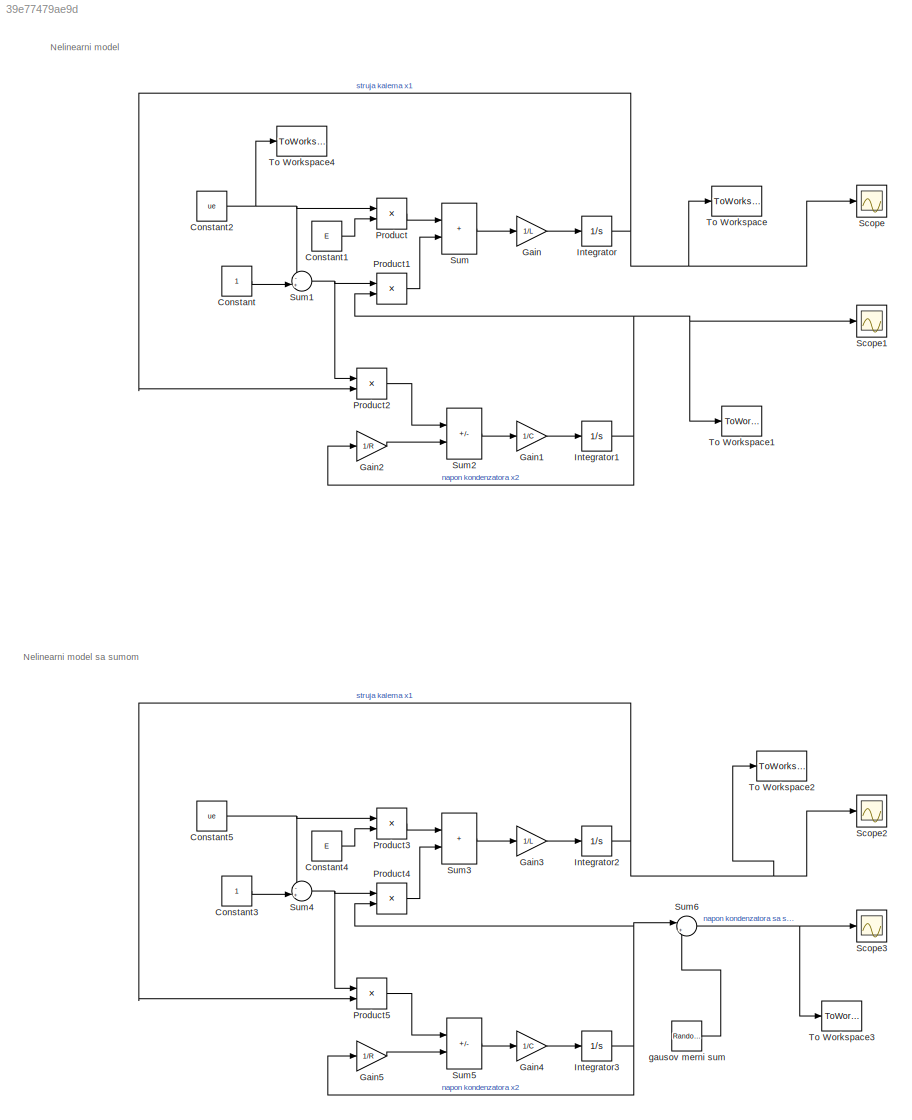
MODEL slx_39e77479ae9d
KIND model
CONFIG AbsTol = auto
CONFIG EnableMultiTasking = off
CONFIG FixedStep = 1e-3
CONFIG MaxStep = auto
CONFIG MinStep = auto
CONFIG RelTol = 1e-3
CONFIG SampleTimeConstraint = Unconstrained
CONFIG Solver = FixedStepAuto
CONFIG SolverName = FixedStepAuto
CONFIG StartTime = 0.0
CONFIG StopTime = sim_duration
BLOCK [Constant] Constant
BLOCK [Constant] Constant1
  Value = E
BLOCK [Constant] Constant2
  Value = ue
BLOCK [Constant] Constant3
BLOCK [Constant] Constant4
  Value = E
BLOCK [Constant] Constant5
  Value = ue
BLOCK [Gain] Gain
  Gain = 1/L
BLOCK [Gain] Gain1
  Gain = 1/C
BLOCK [Gain] Gain2
  Gain = 1/R
BLOCK [Gain] Gain3
  Gain = 1/L
BLOCK [Gain] Gain4
  Gain = 1/C
BLOCK [Gain] Gain5
  Gain = 1/R
BLOCK [Integrator] Integrator
  Ports = [1, 1]
BLOCK [Integrator] Integrator1
  Ports = [1, 1]
BLOCK [Integrator] Integrator2
  Ports = [1, 1]
BLOCK [Integrator] Integrator3
  Ports = [1, 1]
BLOCK [Product] Product
  Ports = [2, 1]
BLOCK [Product] Product1
  Ports = [2, 1]
BLOCK [Product] Product2
  Ports = [2, 1]
BLOCK [Product] Product3
  Ports = [2, 1]
BLOCK [Product] Product4
  Ports = [2, 1]
BLOCK [Product] Product5
  Ports = [2, 1]
BLOCK [Scope] Scope
  Floating = off
  NumInputPorts = 1
  Ports = [1]
  ScopeSpecificationString = Simulink.scopes.TimeScopeBlockCfg('CurrentConfiguration', extmgr.ConfigurationSet(extmgr.Configuration('Core','General UI',true),extmgr.Configuration('Core','Source UI',true),extmgr.Configuration('Sources','WiredSimulink',true),extmgr.Configuration('Visuals','Time Domain',true,'SerializedDisplays',{struct('MinYLimReal','-11.47133','MaxYLimReal','15.63356','YLabelReal','','MinYLimMag','0.00000','Ma...<+1342ch>
BLOCK [Scope] Scope1
  Floating = off
  NumInputPorts = 1
  Ports = [1]
  ScopeSpecificationString = Simulink.scopes.TimeScopeBlockCfg('CurrentConfiguration', extmgr.ConfigurationSet(extmgr.Configuration('Core','General UI',true),extmgr.Configuration('Core','Source UI',true),extmgr.Configuration('Sources','WiredSimulink',true,'DataLoggingVariableName','ScopeData1'),extmgr.Configuration('Visuals','Time Domain',true,'SerializedDisplays',{struct('MinYLimReal','-40.07464','MaxYLimReal','4.45274','YLa...<+1384ch>
BLOCK [Scope] Scope2
  Floating = off
  NumInputPorts = 1
  Ports = [1]
  ScopeSpecificationString = Simulink.scopes.TimeScopeBlockCfg('CurrentConfiguration', extmgr.ConfigurationSet(extmgr.Configuration('Core','General UI',true),extmgr.Configuration('Core','Source UI',true),extmgr.Configuration('Sources','WiredSimulink',true,'DataLoggingVariableName','ScopeData1'),extmgr.Configuration('Visuals','Time Domain',true,'SerializedDisplays',{struct('MinYLimReal','-1.06064','MaxYLimReal','4.59108','YLab...<+1359ch>
BLOCK [Scope] Scope3
  Floating = off
  NumInputPorts = 1
  Ports = [1]
  ScopeSpecificationString = Simulink.scopes.TimeScopeBlockCfg('CurrentConfiguration', extmgr.ConfigurationSet(extmgr.Configuration('Core','General UI',true),extmgr.Configuration('Core','Source UI',true),extmgr.Configuration('Sources','WiredSimulink',true,'DataLoggingVariableName','ScopeData2'),extmgr.Configuration('Visuals','Time Domain',true,'SerializedDisplays',{struct('MinYLimReal','-40.07464','MaxYLimReal','4.45274','YLa...<+1384ch>
BLOCK [Sum] Sum
  IconShape = rectangular
  Ports = [2, 1]
BLOCK [Sum] Sum1
  Inputs = -+|
  Ports = [2, 1]
BLOCK [Sum] Sum2
  IconShape = rectangular
  Inputs = --
  Ports = [2, 1]
BLOCK [Sum] Sum3
  IconShape = rectangular
  Ports = [2, 1]
BLOCK [Sum] Sum4
  Inputs = -+|
  Ports = [2, 1]
BLOCK [Sum] Sum5
  IconShape = rectangular
  Inputs = --
  Ports = [2, 1]
BLOCK [Sum] Sum6
  Inputs = |++
  Ports = [2, 1]
BLOCK [ToWorkspace] To Workspace
  FixptAsFi = on
  MaxDataPoints = inf
  Ports = [1]
  SampleTime = -1
  SaveFormat = Timeseries
  VariableName = x1
BLOCK [ToWorkspace] To Workspace1
  FixptAsFi = on
  MaxDataPoints = inf
  Ports = [1]
  SampleTime = -1
  SaveFormat = Timeseries
  VariableName = x2
BLOCK [ToWorkspace] To Workspace2
  FixptAsFi = on
  MaxDataPoints = inf
  Ports = [1]
  SampleTime = -1
  SaveFormat = Timeseries
  VariableName = x1_sum
BLOCK [ToWorkspace] To Workspace3
  FixptAsFi = on
  MaxDataPoints = inf
  Ports = [1]
  SampleTime = -1
  SaveFormat = Timeseries
  VariableName = x2_sum
BLOCK [ToWorkspace] To Workspace4
  FixptAsFi = on
  MaxDataPoints = inf
  Ports = [1]
  SampleTime = -1
  VariableName = u
BLOCK [RandomNumber] gausov merni sum
  SampleTime = 1e-3
  Variance = (0.05*x2e)^2
ANNOTATION (root): Nelinearni model
ANNOTATION (root): Nelinearni model sa sumom
LINE Constant1:1 -> Product:2
NET Constant2:1 -> Product:1, Sum1:1, To Workspace4:1
LINE Constant3:1 -> Sum4:2
LINE Constant4:1 -> Product3:2
NET Constant5:1 -> Product3:1, Sum4:1
LINE Constant:1 -> Sum1:2
LINE Gain1:1 -> Integrator1:1
LINE Gain2:1 -> Sum2:2
LINE Gain3:1 -> Integrator2:1
LINE Gain4:1 -> Integrator3:1
LINE Gain5:1 -> Sum5:2
LINE Gain:1 -> Integrator:1
NET Integrator1:1 -> Gain2:1, Product1:2, Scope1:1, To Workspace1:1
NET Integrator2:1 -> Product5:2, Scope2:1, To Workspace2:1
NET Integrator3:1 -> Gain5:1, Product4:2, Sum6:1
NET Integrator:1 -> Product2:2, Scope:1, To Workspace:1
LINE Product1:1 -> Sum:2
LINE Product2:1 -> Sum2:1
LINE Product3:1 -> Sum3:1
LINE Product4:1 -> Sum3:2
LINE Product5:1 -> Sum5:1
LINE Product:1 -> Sum:1
NET Sum1:1 -> Product1:1, Product2:1
LINE Sum2:1 -> Gain1:1
LINE Sum3:1 -> Gain3:1
NET Sum4:1 -> Product4:1, Product5:1
LINE Sum5:1 -> Gain4:1
NET Sum6:1 -> Scope3:1, To Workspace3:1
LINE Sum:1 -> Gain:1
LINE gausov merni sum:1 -> Sum6:2
note: NET lines group one-source signal fan-out (src -> all destinations, sorted); 1:1 wires keep LINE
